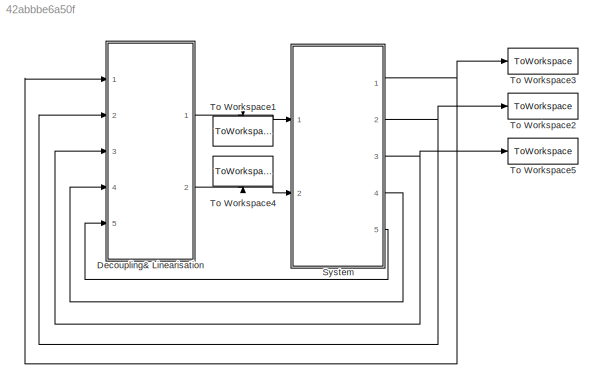
MODEL slx_42abbbe6a50f
KIND model
CONFIG AbsTol = auto
CONFIG EnableMultiTasking = off
CONFIG FixedStep = auto
CONFIG MaxStep = auto
CONFIG MinStep = auto
CONFIG RelTol = 1e-3
CONFIG SampleTimeConstraint = Unconstrained
CONFIG Solver = VariableStepAuto
CONFIG SolverName = VariableStepAuto
CONFIG StartTime = 0.0
CONFIG StopTime = 20.0
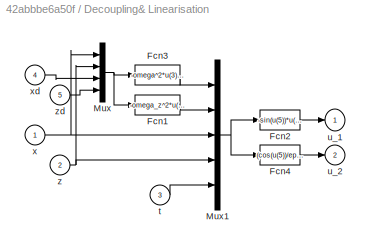
BLOCK [SubSystem] Decoupling& Linearisation
  Ports = [5, 2]
  RequestExecContextInheritance = off
  ShowPortLabels = SignalName
  Variant = off
BLOCK [Fcn] Decoupling& Linearisation/Fcn1
  Expr = -omega_z^2*u(4)-2*psi_z*omega_z*u(2)
BLOCK [Fcn] Decoupling& Linearisation/Fcn2
  Expr = -sin(u(5))*u(1)+cos(u(5))*u(2)-cos(u(5))
BLOCK [Fcn] Decoupling& Linearisation/Fcn3
  Expr = -omega^2*u(3)-2*psi*omega*u(1)
BLOCK [Fcn] Decoupling& Linearisation/Fcn4
  Expr = (cos(u(5))/epsilon)*u(1)+(sin(u(5))/epsilon)*u(2)+sin(u(5))/epsilon
BLOCK [Mux] Decoupling& Linearisation/Mux
  DisplayOption = bar
  Ports = [4, 1]
BLOCK [Mux] Decoupling& Linearisation/Mux1
  DisplayOption = bar
  Inputs = 5
  Ports = [5, 1]
BLOCK [Inport] Decoupling& Linearisation/t 
  IconDisplay = Port number
  Port = 3
BLOCK [Outport] Decoupling& Linearisation/u_1
  IconDisplay = Port number
BLOCK [Outport] Decoupling& Linearisation/u_2
  IconDisplay = Port number
  Port = 2
BLOCK [Inport] Decoupling& Linearisation/x
  IconDisplay = Port number
BLOCK [Inport] Decoupling& Linearisation/xd
  IconDisplay = Port number
  Port = 4
BLOCK [Inport] Decoupling& Linearisation/z
  IconDisplay = Port number
  Port = 2
BLOCK [Inport] Decoupling& Linearisation/zd
  IconDisplay = Port number
  Port = 5
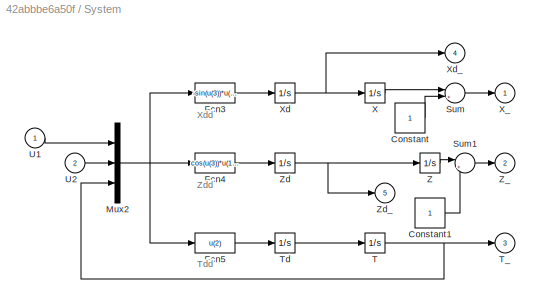
BLOCK [SubSystem] System
  Ports = [2, 5]
  RequestExecContextInheritance = off
  ShowPortLabels = SignalName
  Variant = off
BLOCK [Constant] System/Constant
BLOCK [Constant] System/Constant1
BLOCK [Fcn] System/Fcn3
  Expr = -sin(u(3))*u(1)+epsilon*cos(u(3))*u(2)
BLOCK [Fcn] System/Fcn4
  Expr = cos(u(3))*u(1)+epsilon*sin(u(3))*u(2)-1
BLOCK [Fcn] System/Fcn5
  Expr = u(2)
BLOCK [Mux] System/Mux2
  DisplayOption = bar
  Inputs = 3
  Ports = [3, 1]
BLOCK [Sum] System/Sum
  IconShape = round
  InputSameDT = off
  Inputs = |++
  OutDataTypeStr = Inherit: Inherit via internal rule
  Ports = [2, 1]
  SaturateOnIntegerOverflow = off
BLOCK [Sum] System/Sum1
  IconShape = round
  InputSameDT = off
  Inputs = |++
  OutDataTypeStr = Inherit: Inherit via internal rule
  Ports = [2, 1]
  SaturateOnIntegerOverflow = off
BLOCK [Integrator] System/T
  Ports = [1, 1]
BLOCK [Outport] System/T_
  IconDisplay = Port number
  Port = 3
BLOCK [Integrator] System/Td
  Ports = [1, 1]
BLOCK [Inport] System/U1 
  IconDisplay = Port number
BLOCK [Inport] System/U2
  IconDisplay = Port number
  Port = 2
BLOCK [Integrator] System/X
  Ports = [1, 1]
BLOCK [Outport] System/X_
  IconDisplay = Port number
BLOCK [Integrator] System/Xd
  Ports = [1, 1]
BLOCK [Outport] System/Xd_
  IconDisplay = Port number
  Port = 4
BLOCK [Integrator] System/Z
  Ports = [1, 1]
BLOCK [Outport] System/Z_ 
  IconDisplay = Port number
  Port = 2
BLOCK [Integrator] System/Zd
  Ports = [1, 1]
BLOCK [Outport] System/Zd_
  IconDisplay = Port number
  Port = 5
BLOCK [ToWorkspace] To Workspace1
  MaxDataPoints = inf
  Ports = [1]
  SampleTime = -1
  VariableName = u1
BLOCK [ToWorkspace] To Workspace2
  MaxDataPoints = inf
  Ports = [1]
  SampleTime = -1
  VariableName = z
BLOCK [ToWorkspace] To Workspace3
  MaxDataPoints = inf
  Ports = [1]
  SampleTime = -1
  VariableName = x
BLOCK [ToWorkspace] To Workspace4
  MaxDataPoints = inf
  Ports = [1]
  SampleTime = -1
  VariableName = u2
BLOCK [ToWorkspace] To Workspace5
  MaxDataPoints = inf
  Ports = [1]
  SampleTime = -1
  VariableName = theta
ANNOTATION System: Tdd
ANNOTATION System: Xdd
ANNOTATION System: Zdd
LINE Decoupling& Linearisation/Fcn1:1 -> Decoupling& Linearisation/Mux1:2
LINE Decoupling& Linearisation/Fcn2:1 -> Decoupling& Linearisation/u_1:1
LINE Decoupling& Linearisation/Fcn3:1 -> Decoupling& Linearisation/Mux1:1
LINE Decoupling& Linearisation/Fcn4:1 -> Decoupling& Linearisation/u_2:1
NET Decoupling& Linearisation/Mux1:1 -> Decoupling& Linearisation/Fcn2:1, Decoupling& Linearisation/Fcn4:1
NET Decoupling& Linearisation/Mux:1 -> Decoupling& Linearisation/Fcn1:1, Decoupling& Linearisation/Fcn3:1
LINE Decoupling& Linearisation/t :1 -> Decoupling& Linearisation/Mux1:5
NET Decoupling& Linearisation/x:1 -> Decoupling& Linearisation/Mux1:3, Decoupling& Linearisation/Mux:1
LINE Decoupling& Linearisation/xd:1 -> Decoupling& Linearisation/Mux:3
NET Decoupling& Linearisation/z:1 -> Decoupling& Linearisation/Mux1:4, Decoupling& Linearisation/Mux:2
LINE Decoupling& Linearisation/zd:1 -> Decoupling& Linearisation/Mux:4
NET Decoupling& Linearisation:1 -> System:1, To Workspace1:1
NET Decoupling& Linearisation:2 -> System:2, To Workspace4:1
LINE System/Constant1:1 -> System/Sum1:2
LINE System/Constant:1 -> System/Sum:2
LINE System/Fcn3:1 -> System/Xd:1
LINE System/Fcn4:1 -> System/Zd:1
LINE System/Fcn5:1 -> System/Td:1
NET System/Mux2:1 -> System/Fcn3:1, System/Fcn4:1, System/Fcn5:1
LINE System/Sum1:1 -> System/Z_ :1
LINE System/Sum:1 -> System/X_:1
NET System/T:1 -> System/Mux2:3, System/T_:1
LINE System/Td:1 -> System/T:1
LINE System/U1 :1 -> System/Mux2:1
LINE System/U2:1 -> System/Mux2:2
LINE System/X:1 -> System/Sum:1
NET System/Xd:1 -> System/X:1, System/Xd_:1
LINE System/Z:1 -> System/Sum1:1
NET System/Zd:1 -> System/Z:1, System/Zd_:1
NET System:1 -> Decoupling& Linearisation:1, To Workspace3:1
NET System:2 -> Decoupling& Linearisation:2, To Workspace2:1
NET System:3 -> Decoupling& Linearisation:3, To Workspace5:1
LINE System:4 -> Decoupling& Linearisation:4
LINE System:5 -> Decoupling& Linearisation:5
note: NET lines group one-source signal fan-out (src -> all destinations, sorted); 1:1 wires keep LINE
